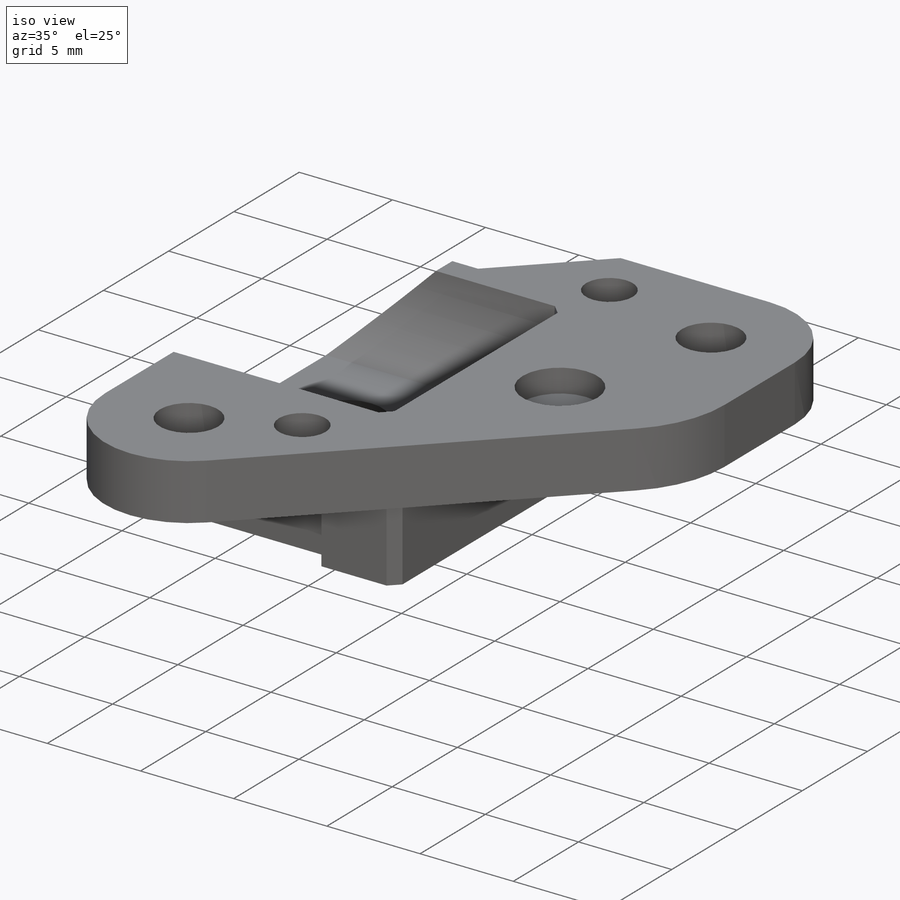
[diagram: iso view]
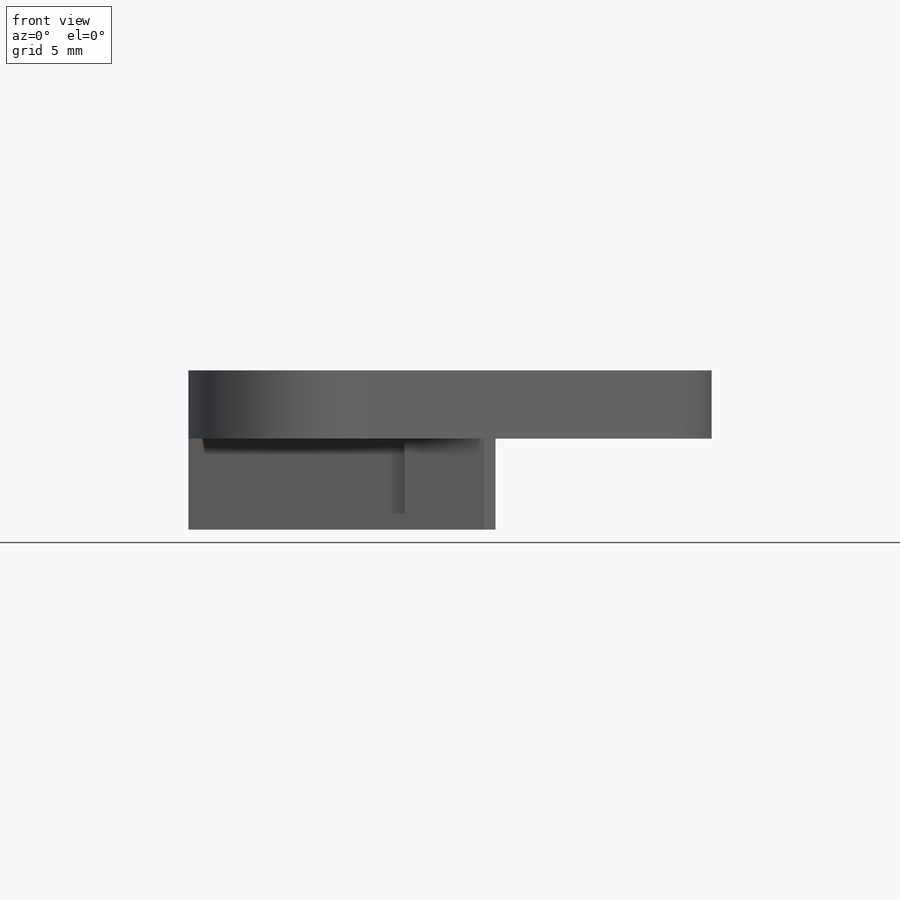
[diagram: front view]
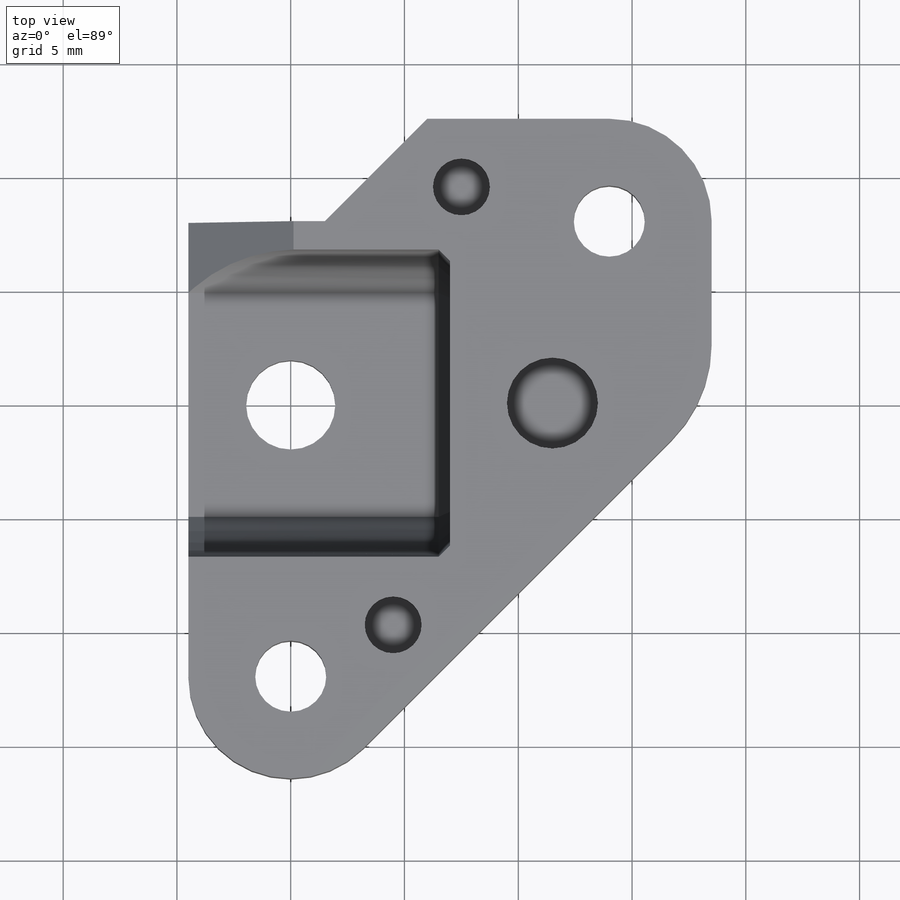
[diagram: top view]
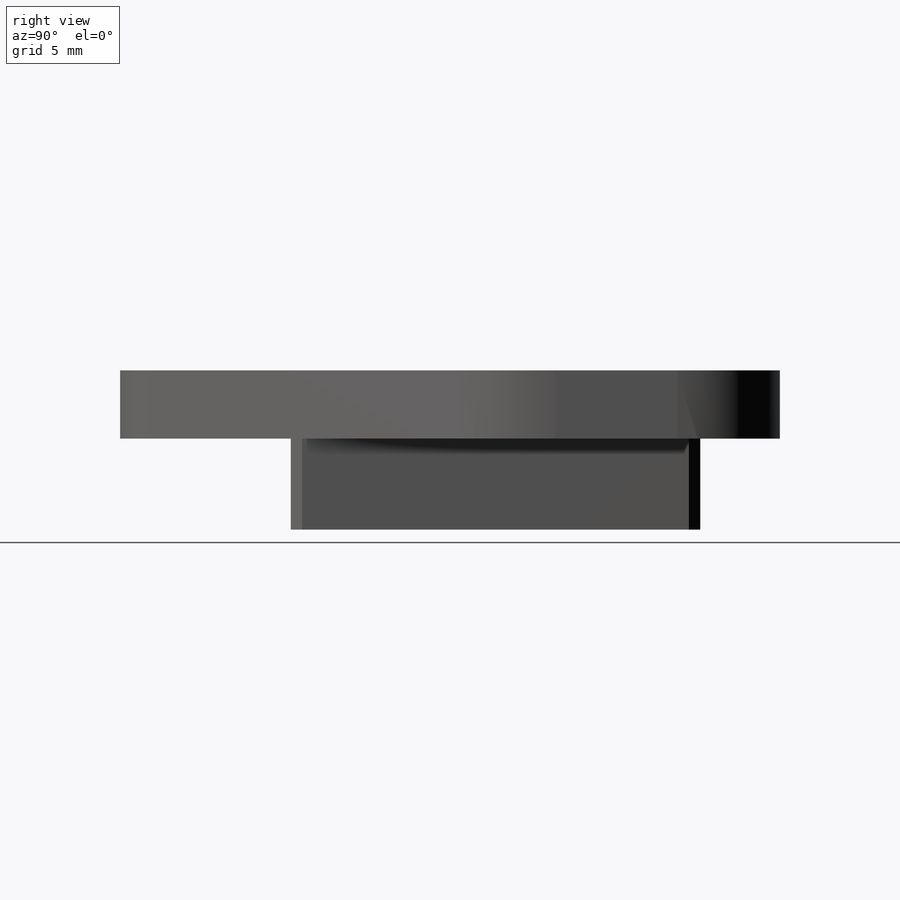
[diagram: right view]
SOLIDWORKS PART (.sldprt)
format: sldprt  version: not decoded by parser v0  size: 263,168 bytes
history: native  units: mm
features: sketch x5, cut_extrude x3, extrude x2, material x1, chamfer x1, fillet x1 (+16 scaffold rows collapsed)
feature tree (29):
  scaffold x16  (default folders/planes/origin — collapsed)
  material  "Material <not specified>"
  sketch  "Sketch1"  dims[c1.D4=3.125mm c1.D1=12.0mm c1.D2=8.0mm c1.D3=14.0mm c1.D5=13.0mm c1.D6=1.0mm c1.D7=8.0mm c1.D8=12.5mm c1.D9=~21.657348mm c2.D9=45.0deg c2.D10=~0.958962mm c3.D10=45.0deg c3.D11=1.0mm]
  extrude  "Boss-Extrude1"  Depth=3mm
  sketch  "Sketch2"  dims[D7=3.92mm D1=9.0mm D2=8.0mm D3=8.0mm D4=1.0mm D5=4.0mm D6=9.0mm]
  extrude  "Boss-Extrude2"  Depth=4mm
  sketch  "Sketch3"  dims[c1.D1=1.62mm c1.D2=2.0mm c2.D1=1.62mm c2.D2=13.5mm]
  cut_extrude  "Cut-Extrude1"  Depth=11.5mm
  chamfer  "Chamfer1"  Distance=0.5mm Angle=45deg
  sketch  "Sketch5"  dims[c1.D1=4.62mm c2.D1=45.0deg]
  cut_extrude  "Cut-Extrude3"  Depth=4.7625mm
  fillet  "Fillet1"  Radius=6mm
  sketch  "Sketch6"  dims[D1=2.5mm D2=4.0mm D3=11.5mm D4=4.5mm D5=9.75mm D6=9.5mm D7=7.5mm]
  cut_extrude  "Cut-Extrude4"  Depth=1.25mm
decode coverage: 12 of 12 modeling features carry decoded parameters
note: ~ marks probable driven/reference dimensions
note: suppression state not decoded; provenance and decode notes live in map.json
